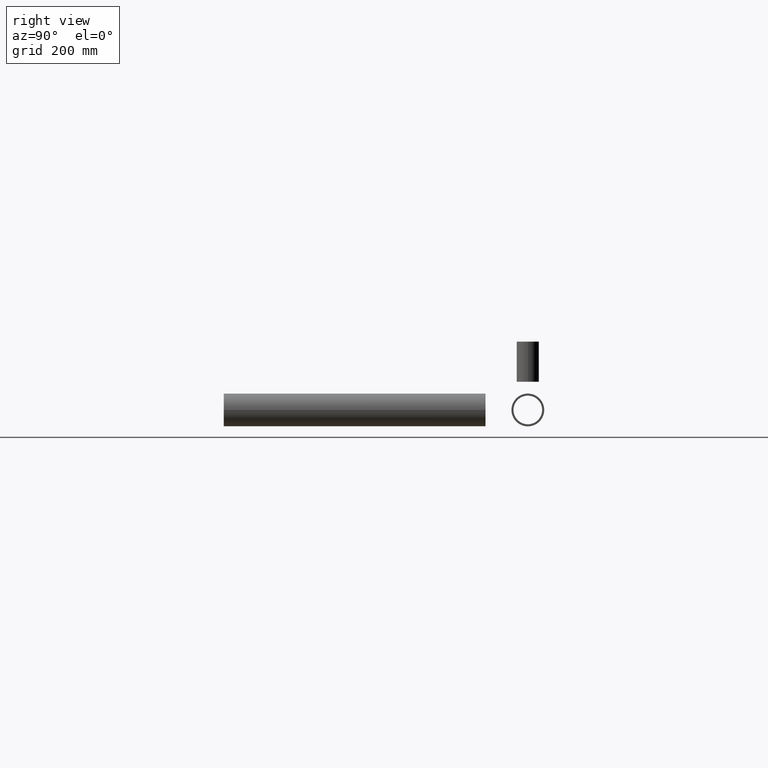
[diagram: clean part render]
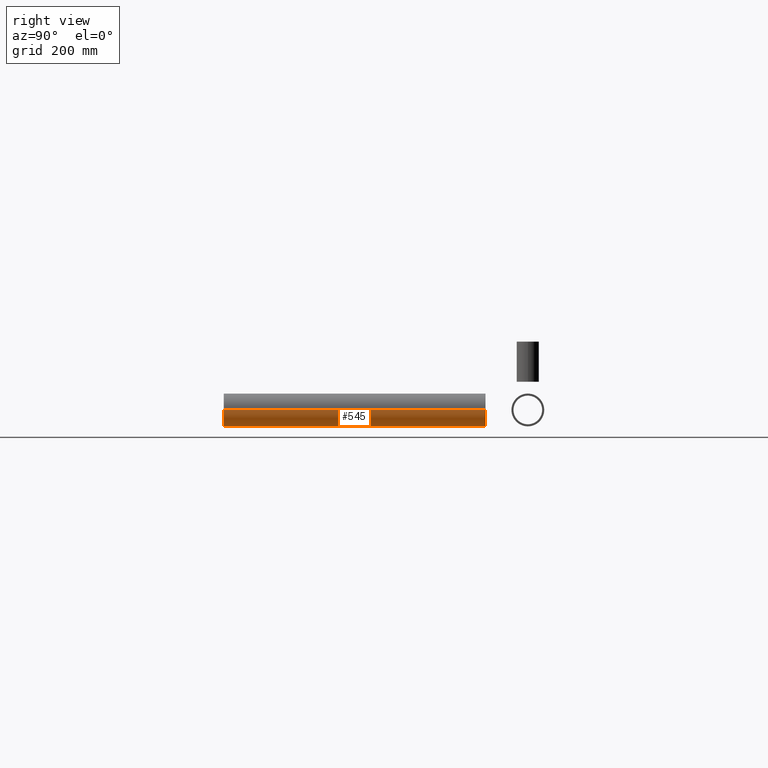
[diagram: same view with one face highlighted and labeled with its STEP entity id]
A machine part, right view. The second image highlights one B-rep face of the part: STEP entity #545.
In plain terms, the highlighted cylindrical surface (edge-blend (fillet) strip) has radius 44.45 mm, axis along (0, -1, -0).
Its self-contained STEP definition (entity closure, byte-faithful):
#37 = AXIS2_PLACEMENT_3D ( 'NONE', #266, #835, #663 ) ;
#38 = VECTOR ( 'NONE', #732, 1000.000000000000000 ) ;
#68 = CYLINDRICAL_SURFACE ( 'NONE', #37, 44.45000000000010232 ) ;
#98 = CARTESIAN_POINT ( 'NONE',  ( 1005.000000000000341, -823.0000000000000000, 0.000000000000000000 ) ) ;
#150 = EDGE_CURVE ( 'NONE', #1190, #924, #291, .T. ) ;
#214 = CARTESIAN_POINT ( 'NONE',  ( 960.5499999999999545, -114.5000000000000711, 5.443555022209984909E-15 ) ) ;
#221 = CARTESIAN_POINT ( 'NONE',  ( 960.5500000000002956, -823.0000000000000000, 5.443555022209987275E-15 ) ) ;
#266 = CARTESIAN_POINT ( 'NONE',  ( 1004.999999999999886, -114.5000000000000426, 0.000000000000000000 ) ) ;
#291 = CIRCLE ( 'NONE', #1110, 44.44999999999998863 ) ;
#359 = VERTEX_POINT ( 'NONE', #760 ) ;
#439 = VECTOR ( 'NONE', #1003, 1000.000000000000000 ) ;
#482 = CARTESIAN_POINT ( 'NONE',  ( 1049.450000000000500, -823.0000000000000000, 0.000000000000000000 ) ) ;
#510 = AXIS2_PLACEMENT_3D ( 'NONE', #746, #1215, #1130 ) ;
#533 = LINE ( 'NONE', #919, #439 ) ;
#545 = ADVANCED_FACE ( 'NONE', ( #926 ), #68, .T. ) ;
#580 = ORIENTED_EDGE ( 'NONE', *, *, #150, .T. ) ;
#600 = ORIENTED_EDGE ( 'NONE', *, *, #903, .F. ) ;
#632 = ORIENTED_EDGE ( 'NONE', *, *, #1037, .F. ) ;
#642 = EDGE_LOOP ( 'NONE', ( #600, #632, #657, #580 ) ) ;
#657 = ORIENTED_EDGE ( 'NONE', *, *, #914, .T. ) ;
#663 = DIRECTION ( 'NONE',  ( 1.000000000000000000, 6.244223985518301137E-16, 0.000000000000000000 ) ) ;
#732 = DIRECTION ( 'NONE',  ( 6.268019899083453926E-16, -1.000000000000000000, -0.000000000000000000 ) ) ;
#736 = VERTEX_POINT ( 'NONE', #1065 ) ;
#746 = CARTESIAN_POINT ( 'NONE',  ( 1004.999999999999886, -114.5000000000000426, 0.000000000000000000 ) ) ;
#760 = CARTESIAN_POINT ( 'NONE',  ( 960.5499999999999545, -114.5000000000000711, 5.443555022210014885E-15 ) ) ;
#765 = DIRECTION ( 'NONE',  ( -6.268019899083453926E-16, 1.000000000000000000, 0.000000000000000000 ) ) ;
#825 = LINE ( 'NONE', #214, #38 ) ;
#835 = DIRECTION ( 'NONE',  ( 6.268019899083453926E-16, -1.000000000000000000, -0.000000000000000000 ) ) ;
#903 = EDGE_CURVE ( 'NONE', #359, #924, #825, .T. ) ;
#914 = EDGE_CURVE ( 'NONE', #736, #1190, #533, .T. ) ;
#919 = CARTESIAN_POINT ( 'NONE',  ( 1049.450000000000045, -114.5000000000000142, 0.000000000000000000 ) ) ;
#924 = VERTEX_POINT ( 'NONE', #221 ) ;
#926 = FACE_OUTER_BOUND ( 'NONE', #642, .T. ) ;
#1003 = DIRECTION ( 'NONE',  ( 6.268019899083453926E-16, -1.000000000000000000, -0.000000000000000000 ) ) ;
#1037 = EDGE_CURVE ( 'NONE', #736, #359, #1093, .T. ) ;
#1065 = CARTESIAN_POINT ( 'NONE',  ( 1049.450000000000045, -114.5000000000000142, 0.000000000000000000 ) ) ;
#1093 = CIRCLE ( 'NONE', #510, 44.44999999999998863 ) ;
#1110 = AXIS2_PLACEMENT_3D ( 'NONE', #98, #765, #1141 ) ;
#1130 = DIRECTION ( 'NONE',  ( -1.000000000000000000, -6.244223985518316914E-16, 0.000000000000000000 ) ) ;
#1141 = DIRECTION ( 'NONE',  ( -1.000000000000000000, 0.000000000000000000, 0.000000000000000000 ) ) ;
#1190 = VERTEX_POINT ( 'NONE', #482 ) ;
#1215 = DIRECTION ( 'NONE',  ( -6.268019899083453926E-16, 1.000000000000000000, 0.000000000000000000 ) ) ;